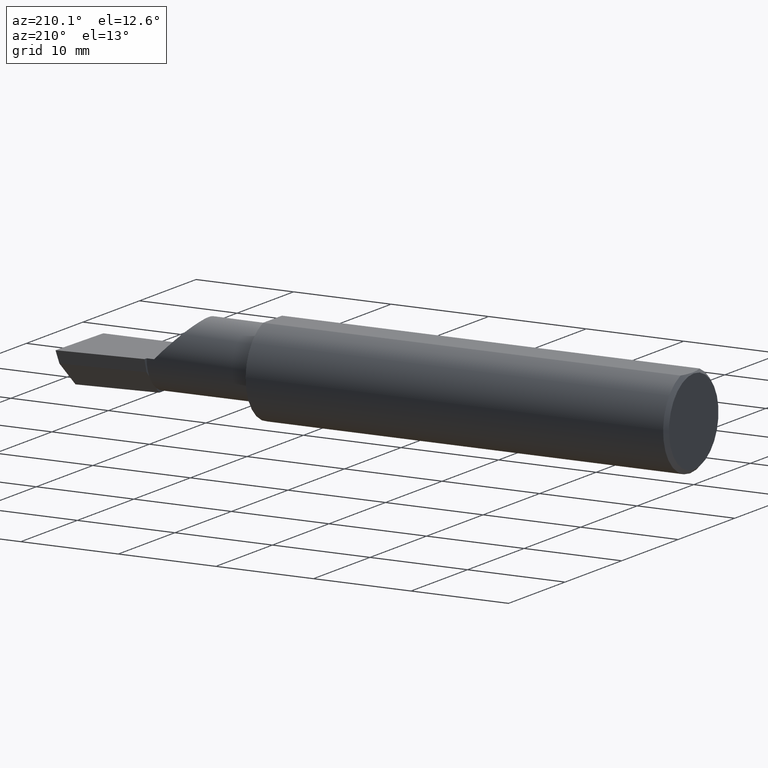
[diagram: clean part render]
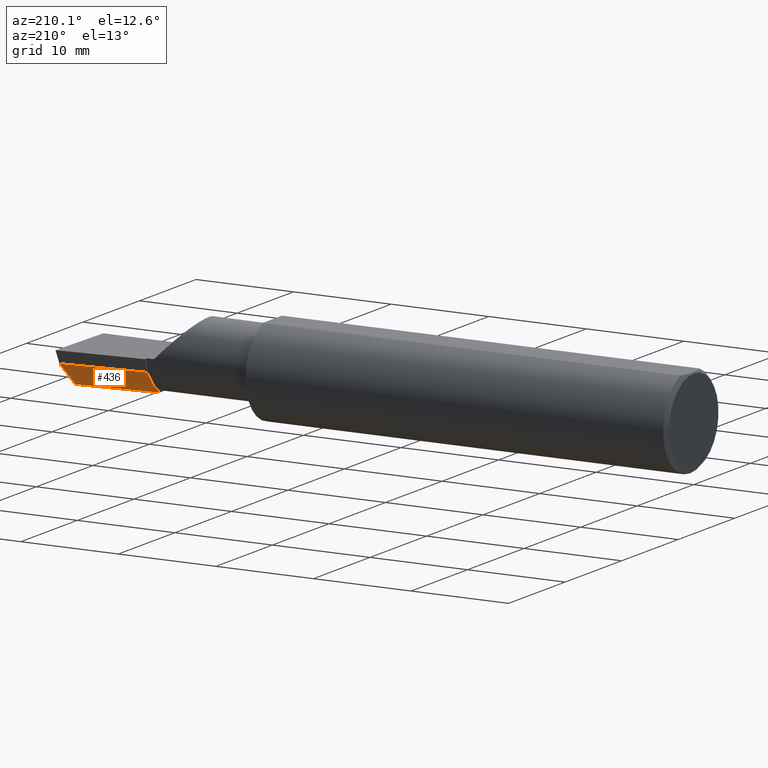
[diagram: same view with one face highlighted and labeled with its STEP entity id]
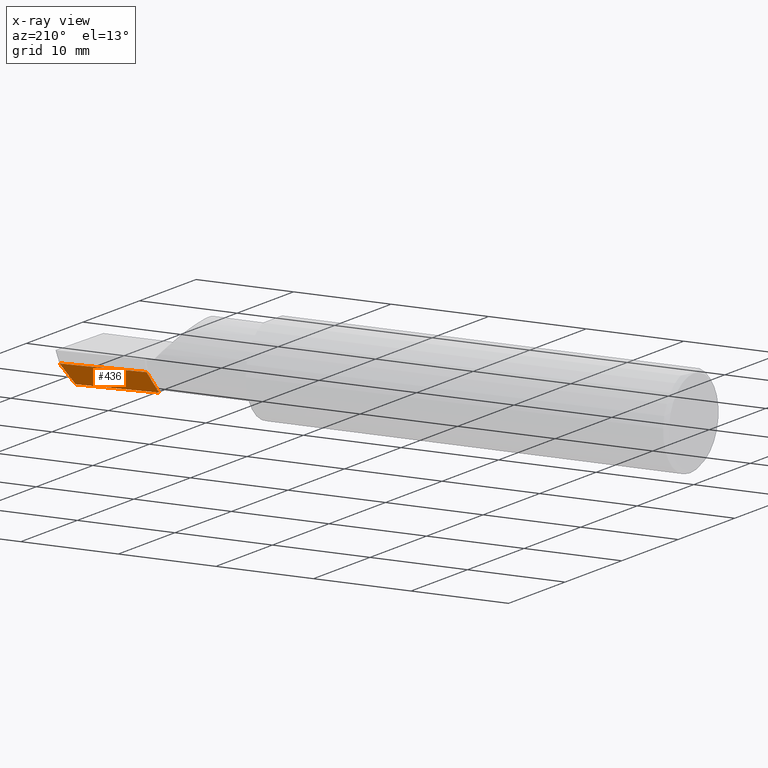
[diagram: x-ray of the same camera — body ghosted, the highlighted face saturated]
A machine part, auxiliary view. The second image highlights one B-rep face of the part: STEP entity #436.
The next image is the same camera in x-ray: the body ghosted, the highlighted face saturated — about 0% of this face is hidden behind the body in this view.
In plain terms, the highlighted planar face has unit normal (-0.0689, 0.716, -0.6947).
Its self-contained STEP definition (entity closure, byte-faithful):
#8 = EDGE_CURVE ( 'NONE', #627, #538, #231, .T. ) ;
#13 = CARTESIAN_POINT ( 'NONE',  ( 2.160000000000000142, 0.01441505128072280949, -0.1202356058309981546 ) ) ;
#32 = ORIENTED_EDGE ( 'NONE', *, *, #221, .F. ) ;
#41 = LINE ( 'NONE', #134, #189 ) ;
#44 = VERTEX_POINT ( 'NONE', #237 ) ;
#76 = CARTESIAN_POINT ( 'NONE',  ( 2.511419111345318811, 0.1163922996227946677, -0.04999999999999999584 ) ) ;
#115 = DIRECTION ( 'NONE',  ( -0.9953961983671800740, -0.09584575252021031166, 0.000000000000000000 ) ) ;
#118 = VECTOR ( 'NONE', #394, 39.37007874015748143 ) ;
#128 = ORIENTED_EDGE ( 'NONE', *, *, #8, .T. ) ;
#134 = CARTESIAN_POINT ( 'NONE',  ( 2.160000000000000142, 0.06382066673065307782, -0.06931012851386068874 ) ) ;
#140 = VECTOR ( 'NONE', #369, 39.37007874015748143 ) ;
#143 = ORIENTED_EDGE ( 'NONE', *, *, #387, .F. ) ;
#162 = CARTESIAN_POINT ( 'NONE',  ( 2.493766568580444432, 0.1168246249203733628, -0.04780233936830585728 ) ) ;
#177 = DIRECTION ( 'NONE',  ( -0.9953961983671800740, -0.09584575252021028391, -1.093478026937437971E-17 ) ) ;
#185 = DIRECTION ( 'NONE',  ( -0.06894566448119619773, 0.7160281025913034503, -0.6946583704589934793 ) ) ;
#187 = VERTEX_POINT ( 'NONE', #13 ) ;
#189 = VECTOR ( 'NONE', #379, 39.37007874015748143 ) ;
#191 = CARTESIAN_POINT ( 'NONE',  ( 2.491859106488688358, 0.02714641170210404381, -0.1400500000000000633 ) ) ;
#202 = LINE ( 'NONE', #162, #287 ) ;
#205 = DIRECTION ( 'NONE',  ( 0.1053106618240634978, 0.6976485211320199165, 0.7086580314005359593 ) ) ;
#221 = EDGE_CURVE ( 'NONE', #187, #538, #240, .T. ) ;
#223 = ORIENTED_EDGE ( 'NONE', *, *, #324, .F. ) ;
#225 = CARTESIAN_POINT ( 'NONE',  ( 2.511419111345318811, 0.1163922996227946677, -0.04999999999999999584 ) ) ;
#231 = LINE ( 'NONE', #191, #503 ) ;
#237 = CARTESIAN_POINT ( 'NONE',  ( 2.160000000000000142, 0.08255448787293394319, -0.04999999999999999584 ) ) ;
#240 = LINE ( 'NONE', #593, #118 ) ;
#251 = VECTOR ( 'NONE', #115, 39.37007874015748854 ) ;
#266 = LINE ( 'NONE', #407, #140 ) ;
#267 = EDGE_CURVE ( 'NONE', #627, #348, #202, .T. ) ;
#277 = PLANE ( 'NONE',  #351 ) ;
#285 = FACE_OUTER_BOUND ( 'NONE', #529, .T. ) ;
#287 = VECTOR ( 'NONE', #205, 39.37007874015748854 ) ;
#324 = EDGE_CURVE ( 'NONE', #348, #44, #502, .T. ) ;
#333 = ORIENTED_EDGE ( 'NONE', *, *, #267, .F. ) ;
#338 = CARTESIAN_POINT ( 'NONE',  ( 2.160000000000000142, -0.004807985797372735411, -0.1400500000000000633 ) ) ;
#348 = VERTEX_POINT ( 'NONE', #417 ) ;
#351 = AXIS2_PLACEMENT_3D ( 'NONE', #225, #185, #389 ) ;
#369 = DIRECTION ( 'NONE',  ( 4.755568962650853567E-18, -0.6963153109074925462, -0.7177360153954948085 ) ) ;
#379 = DIRECTION ( 'NONE',  ( 4.755568962650853567E-18, -0.6963153109074925462, -0.7177360153954948085 ) ) ;
#380 = VERTEX_POINT ( 'NONE', #414 ) ;
#387 = EDGE_CURVE ( 'NONE', #44, #380, #266, .T. ) ;
#389 = DIRECTION ( 'NONE',  ( 0.000000000000000000, 0.6963153109074925462, 0.7177360153954946975 ) ) ;
#394 = DIRECTION ( 'NONE',  ( 4.755568962650853567E-18, -0.6963153109074925462, -0.7177360153954948085 ) ) ;
#407 = CARTESIAN_POINT ( 'NONE',  ( 2.160000000000000142, 0.06382066673065307782, -0.06931012851386068874 ) ) ;
#414 = CARTESIAN_POINT ( 'NONE',  ( 2.160000000000000142, 0.06495571228477960146, -0.06814016562413273415 ) ) ;
#417 = CARTESIAN_POINT ( 'NONE',  ( 2.493439983562941720, 0.1146611065212078395, -0.04999999999999999584 ) ) ;
#422 = EDGE_CURVE ( 'NONE', #380, #187, #41, .T. ) ;
#436 = ADVANCED_FACE ( 'NONE', ( #285 ), #277, .T. ) ;
#502 = LINE ( 'NONE', #76, #251 ) ;
#503 = VECTOR ( 'NONE', #177, 39.37007874015748854 ) ;
#529 = EDGE_LOOP ( 'NONE', ( #333, #128, #32, #566, #143, #223 ) ) ;
#538 = VERTEX_POINT ( 'NONE', #338 ) ;
#566 = ORIENTED_EDGE ( 'NONE', *, *, #422, .F. ) ;
#587 = CARTESIAN_POINT ( 'NONE',  ( 2.480058035321255794, 0.02601009779168069955, -0.1400500000000000633 ) ) ;
#593 = CARTESIAN_POINT ( 'NONE',  ( 2.160000000000000142, 0.06382066673065307782, -0.06931012851386068874 ) ) ;
#627 = VERTEX_POINT ( 'NONE', #587 ) ;